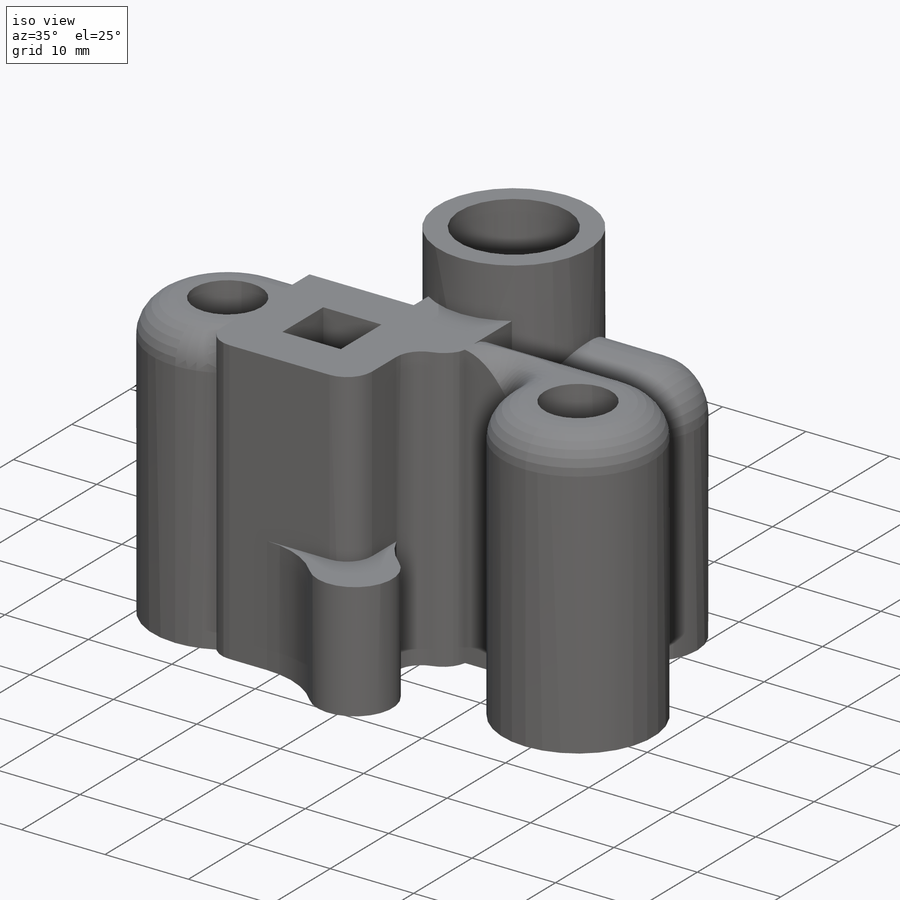
[diagram: iso view]
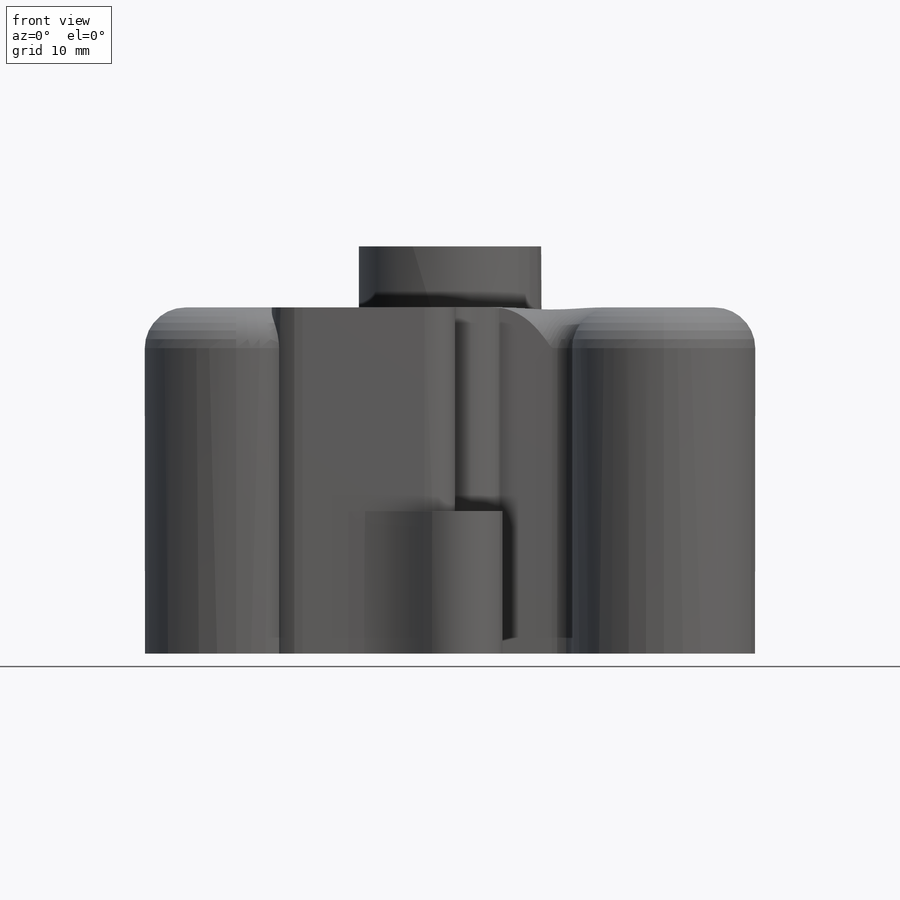
[diagram: front view]
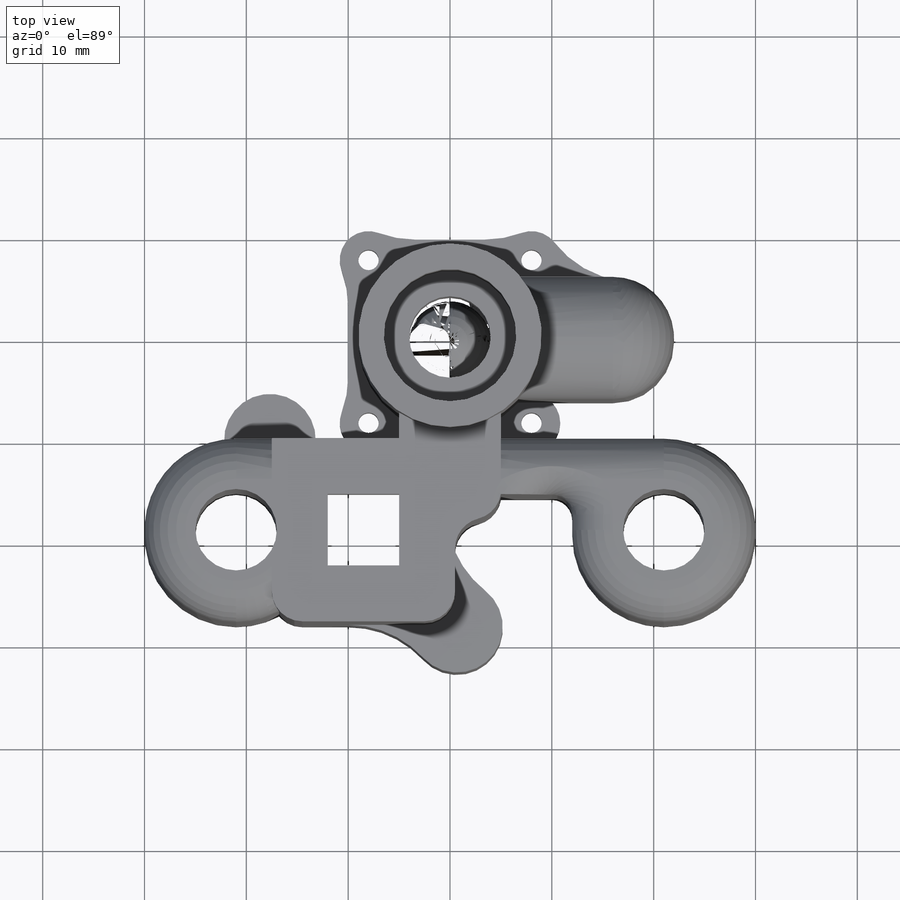
[diagram: top view]
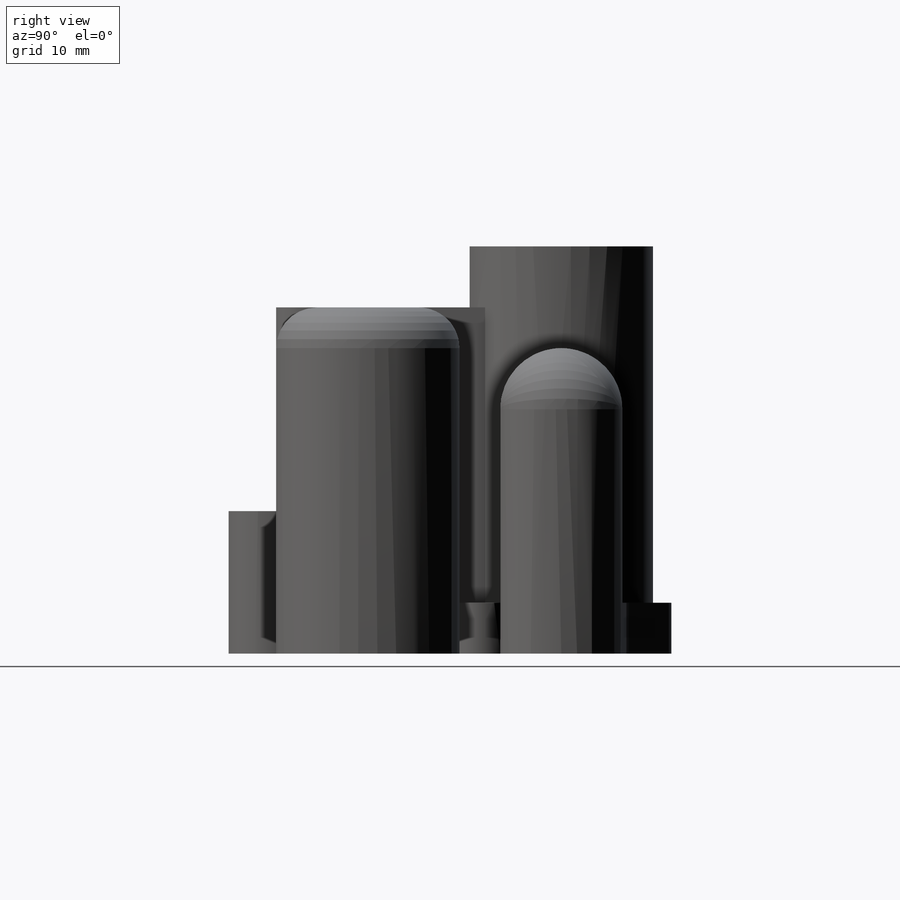
[diagram: right view]
SOLIDWORKS PART (.sldprt)
format: sldprt  version: not decoded by parser v0  size: 917,504 bytes
history: native  units: mm
features: sketch x24, cut_extrude x15, fillet x10, extrude x9, plane x3, material x1 (+10 scaffold rows collapsed)
feature tree (72):
  scaffold x10  (default folders/planes/origin — collapsed)
  material  "ABS"
  plane  "Спереди"
  plane  "Сверху"
  plane  "Справа"
  sketch  "Эскиз1"  dims[D1=20.0mm]
  extrude  "Бобышка-Вытянуть1"  Depth=40mm
  sketch  "Эскиз2"  dims[D1=13.0mm]
  cut_extrude  "Вырез-Вытянуть1"  [1 undecoded]
  sketch  "Эскиз3"  dims[D1=18.0mm]
  cut_extrude  "Вырез-Вытянуть2"  Depth=5mm
  sketch  "Эскиз4"  dims[D1=8.0mm]
  extrude  "Бобышка-Вытянуть2"  Depth=10mm
  sketch  "Эскиз6"  dims[D1=12.0mm]
  extrude  "Бобышка-Вытянуть4"  Depth=30mm
  fillet  "Скругление1"  Radius=6mm
  sketch  "Эскиз10"  dims[D1=16.0mm]
  cut_extrude  "Вырез-Вытянуть5"  Depth=3mm
  sketch  "Эскиз12"  dims[D1=34.0mm D2=60.0mm]
  extrude  "Бобышка-Вытянуть6"  Depth=18mm
  sketch  "Эскиз13"  dims[D1=10.0mm]
  extrude  "Бобышка-Вытянуть7"  [1 undecoded]
  sketch  "Эскиз14"  dims[D1=3.0mm]
  cut_extrude  "Вырез-Вытянуть6"  Depth=24mm
  sketch  "Эскиз15"
  cut_extrude  "Вырез-Вытянуть7"  Depth=8.5mm
  sketch  "Эскиз16"  dims[D1=8.0mm]
  cut_extrude  "Вырез-Вытянуть8"  [1 undecoded]
  sketch  "Эскиз17"  dims[D1=2.0mm]
  cut_extrude  "Вырез-Вытянуть9"  [1 undecoded]
  sketch  "Эскиз18"
  extrude  "Бобышка-Вытянуть8"  [1 undecoded]
  fillet  "Скругление3"  Radius=10mm
  sketch  "Эскиз20"  dims[D1=10.0mm]
  cut_extrude  "Вырез-Вытянуть11"  [1 undecoded]
  fillet  "Скругление5"  Radius=9mm
  fillet  "Скругление7"  Radius=4mm
  sketch  "Эскиз21"  dims[D1=14.0mm]
  cut_extrude  "Вырез-Вытянуть12"  Depth=5mm
  sketch  "Эскиз22"  dims[c1.D1=18.0mm c1.D3=4.0mm c1.D2=8.5mm c2.D1=7.25mm c2.D2=18.0mm]
  extrude  "Бобышка-Вытянуть9"  [1 undecoded]
  sketch  "Эскиз24"  dims[D1=7.0mm D2=9.0mm]
  cut_extrude  "Вырез-Вытянуть13"  [1 undecoded]
  sketch  "Эскиз25"  dims[D1=12.0mm]
  cut_extrude  "Вырез-Вытянуть14"  Depth=29mm
  sketch  "Эскиз28"  dims[D1=4.0mm D2=2.5mm D3=7.0mm]
  cut_extrude  "Вырез-Вытянуть15"  [1 undecoded]
  fillet  "Скругление9"  Radius=3mm
  fillet  "Скругление11"  Radius=3mm
  fillet  "Скругление12"  Radius=2mm
  fillet  "Скругление13"  Radius=4mm
  sketch  "Эскиз32"  dims[c1.D1=9.0mm c1.D2=9.0mm c1.D3=8.0mm c2.D2=5.0mm c2.D1=4.0mm c3.D2=2.5mm c3.D3=4.0mm c3.D4=7.0mm c4.D4=45.0deg]
  extrude  "Бобышка-Вытянуть12"  Depth=10mm
  sketch  "Эскиз33"  dims[D1=3.0mm]
  cut_extrude  "Вырез-Вытянуть18"  Depth=9mm
  sketch  "Эскиз34"  dims[D1=5.5mm]
  cut_extrude  "Вырез-Вытянуть19"  Depth=3mm
  sketch  "Эскиз35"  dims[D1=19.0mm D2=~40.954508mm D3=12.0mm]
  cut_extrude  "Вырез-Вытянуть20"  Depth=9mm
  sketch  "Эскиз36"  dims[D1=5.0mm]
  extrude  "Бобышка-Вытянуть15"  Depth=5mm
  fillet  "Скругление14"  Radius=5mm
  fillet  "Скругление15"  Radius=5mm
decode coverage: 47 of 58 modeling features carry decoded parameters
note: ~ marks probable driven/reference dimensions
note: 9 parameter values undecoded
summary: no parameter record found for 9 features
note: suppression state not decoded; provenance and decode notes live in map.json
